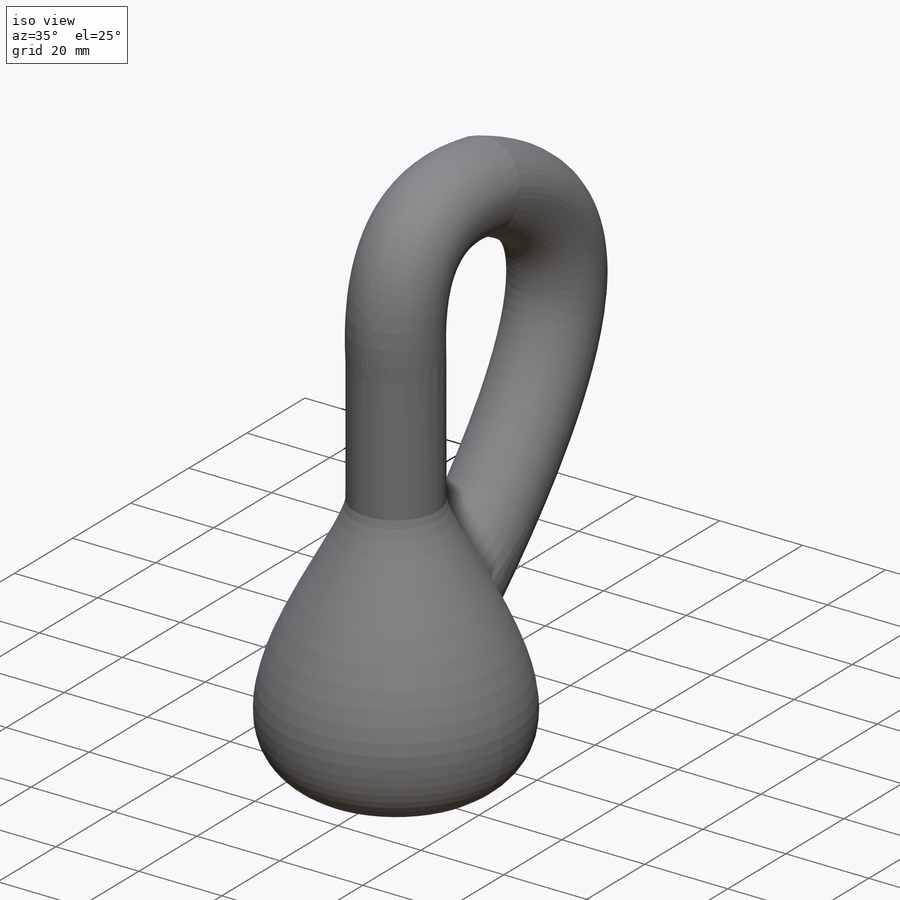
[diagram: iso view]
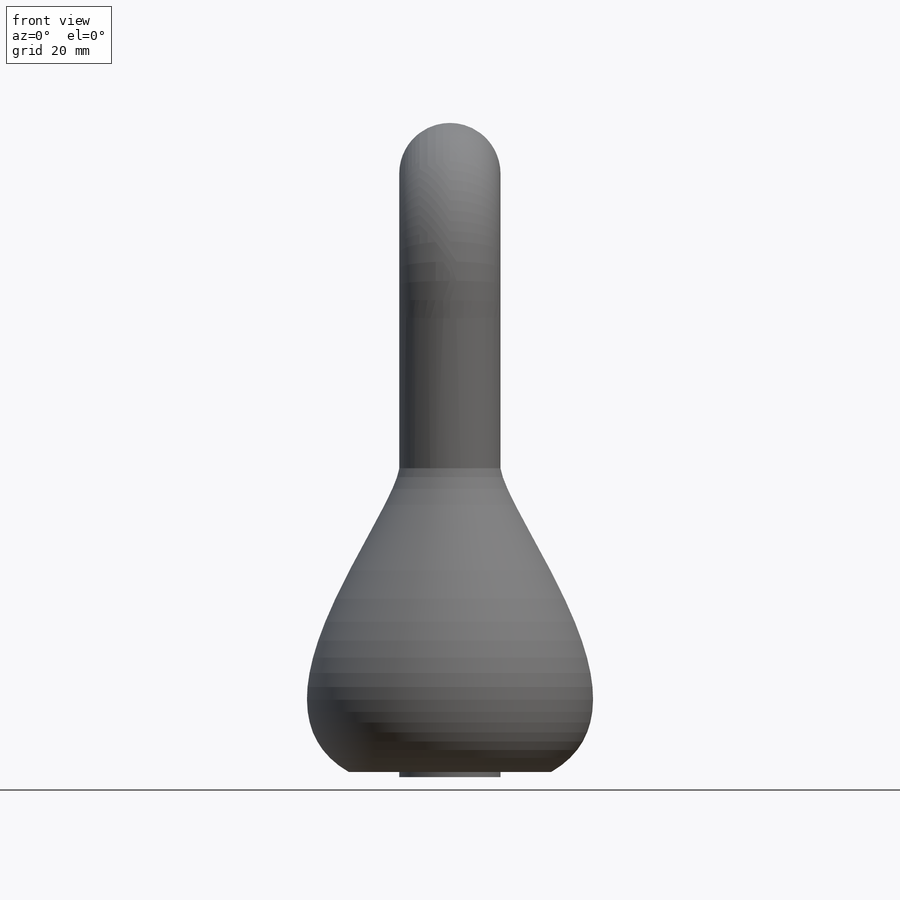
[diagram: front view]
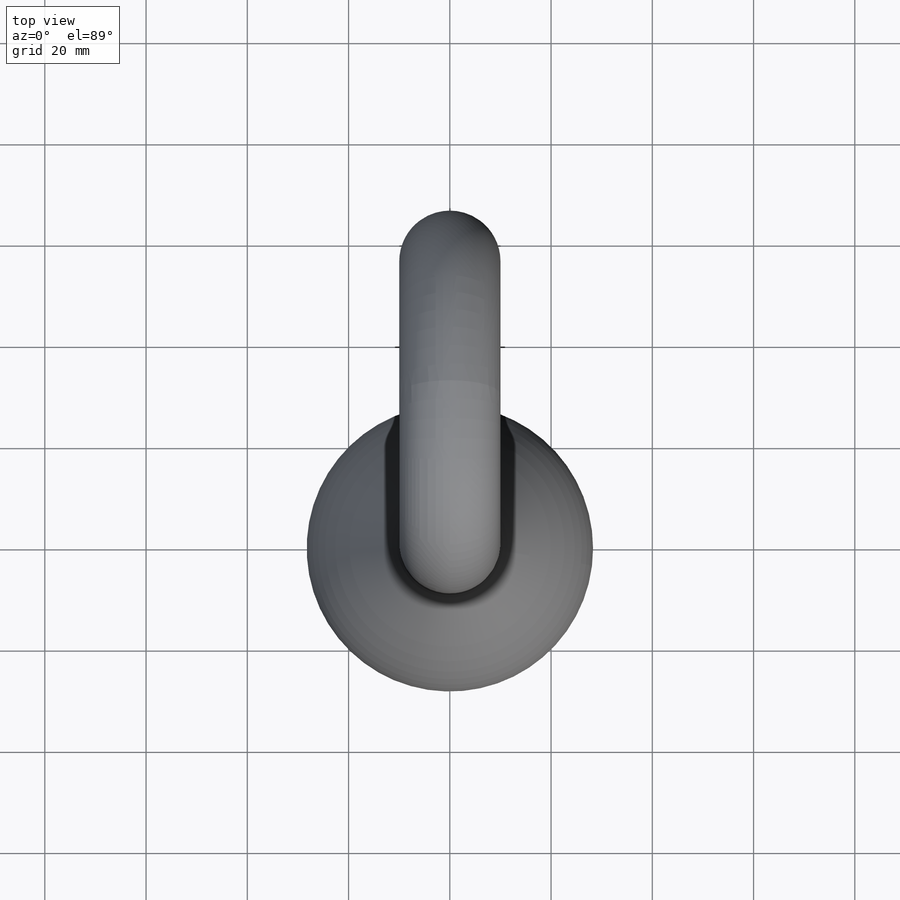
[diagram: top view]
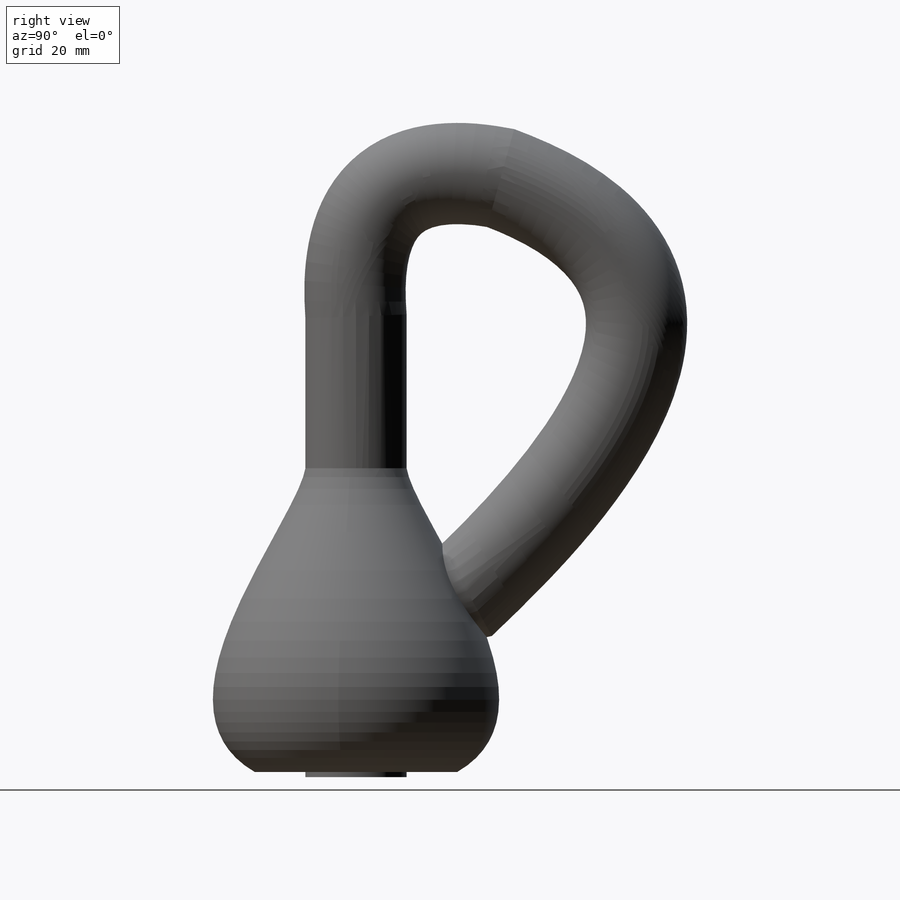
[diagram: right view]
SOLIDWORKS PART (.sldprt)
format: sldprt  version: not decoded by parser v0  size: 509,952 bytes
history: native  units: mm
features: sketch x6, plane x3, sweep x2, material x1, revolve x1, shell x1, cut_extrude x1 (+10 scaffold rows collapsed)
feature tree (25):
  scaffold x10  (default folders/planes/origin — collapsed)
  material  "Material <sin especificar>"
  plane  "Alzado"
  plane  "Planta"
  plane  "Vista lateral"
  sketch  "Croquis1"  dims[D1=10.0mm]
  revolve  "Revolución2"  Angle=360deg
  sketch  "Croquis2"  dims[D1=19.0mm]
  shell  "Vaciado4"  Thickness=1mm
  cut_extrude  "Cortar-Extruir1"  Depth=60mm
  sketch  "Croquis7"  dims[D1=20.0mm]
  sketch  "Croquis8"  dims[D1=~12.224453mm]
  sweep  "Barrer1"
  sketch  "Croquis9"  dims[D1=19.0mm]
  sweep  "Cortar-Barrer1"
  sketch  "Croquis8<2>"
decode coverage: 8 of 11 modeling features carry decoded parameters
note: ~ marks probable driven/reference dimensions
note: suppression state not decoded; provenance and decode notes live in map.json
